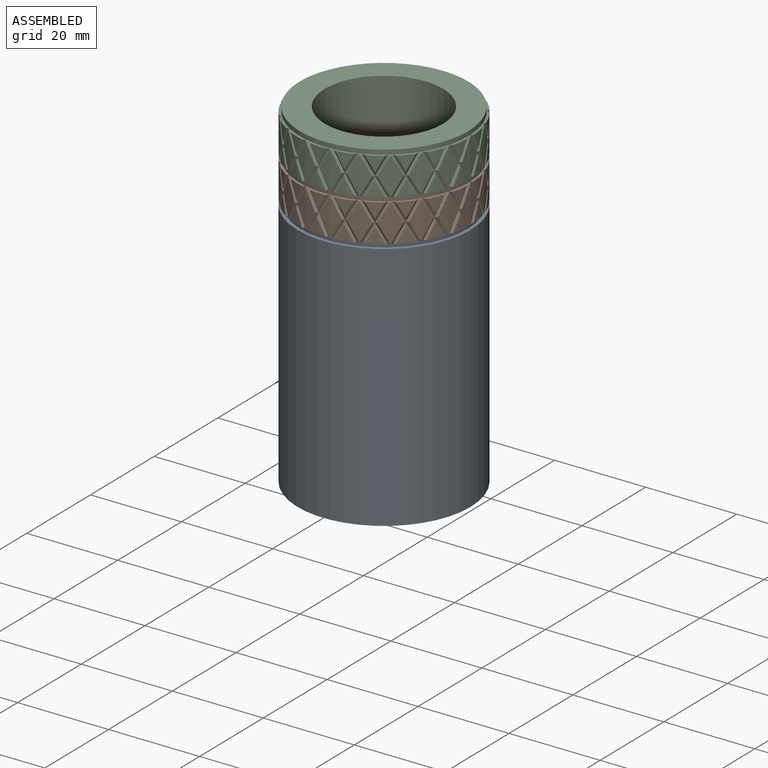
[diagram: assembled view]
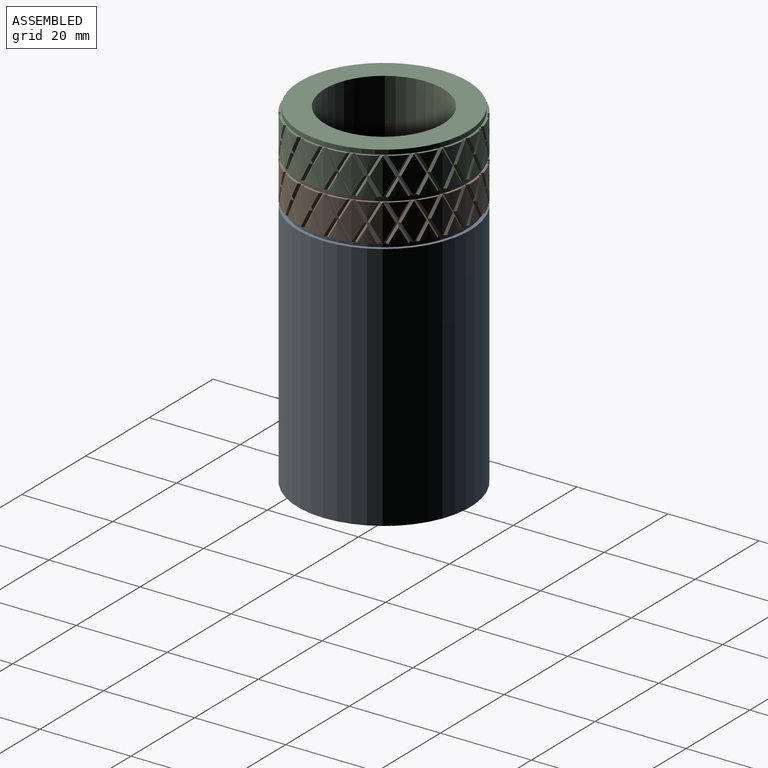
[diagram: assembled view, second angle]
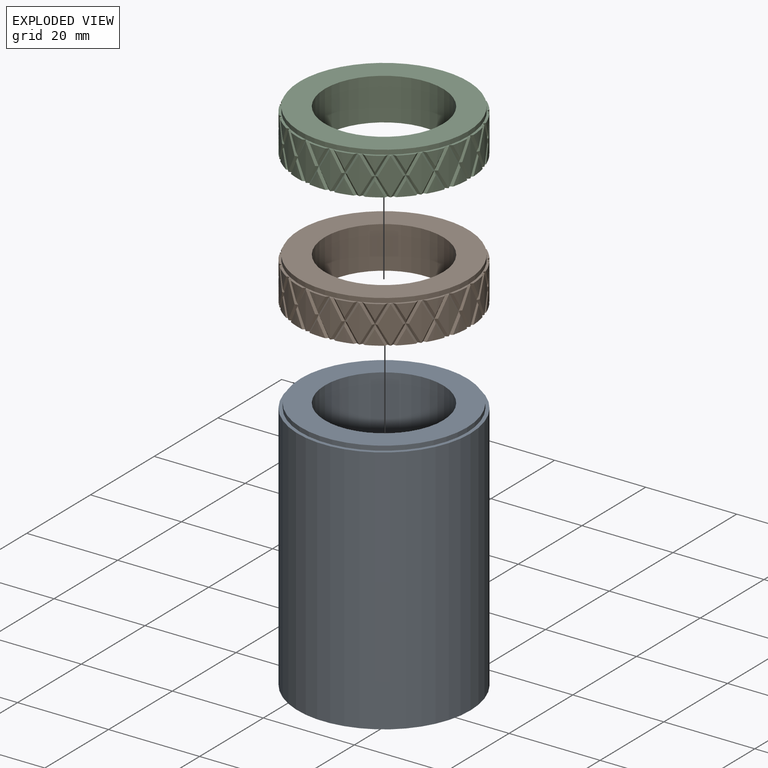
[diagram: exploded view]
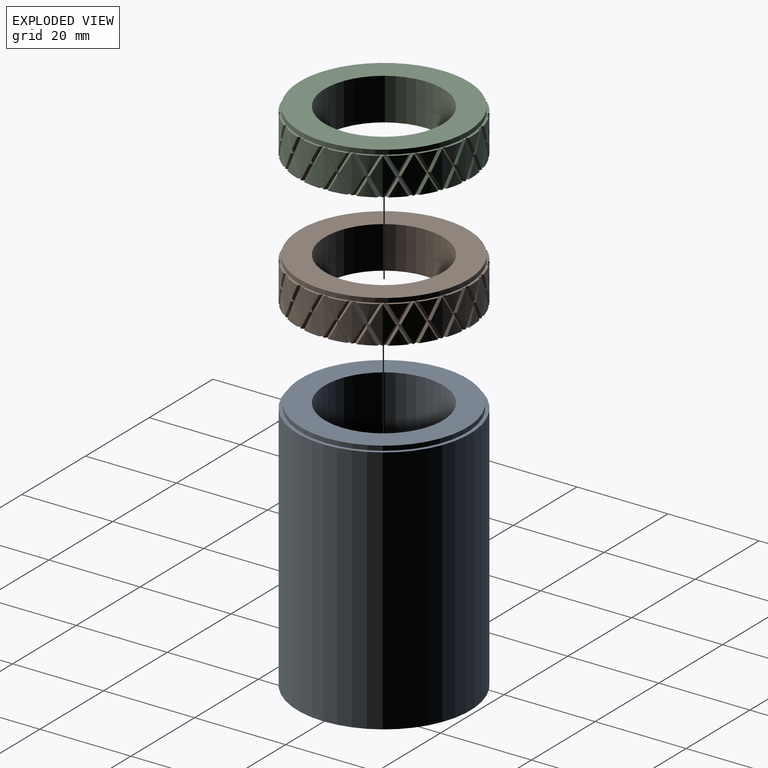
[diagram: exploded view, second angle]
ASSEMBLY  parts=3 mates=2
PART A: 6 faces, bbox 38x38x56 mm
  f0: cylinder r=13mm len=56mm, axis (0,0,-1), area 4574.2mm2, adj f3,f5
  f1: cylinder r=19mm len=55mm, axis (0,0,-1), area 6565.9mm2, adj f2,f3
  f2: plane 38x38mm, normal (0,0,1), area 87.8mm2, adj f1,f4
  f3: plane 38x38mm, normal (0,0,-1), area 603.2mm2, adj f0,f1
  f4: cylinder r=18.25mm len=36.5mm, axis (0,0,-1), area 114.7mm2, adj f2,f5
  f5: plane 36.5x36.5mm, normal (0,0,1), area 515.4mm2, adj f0,f4
PART B: 236 faces, bbox 38.3x38.4x11.5 mm
  f0: bspline ~11.29x5.5mm, area 2.5mm2, adj f1,f6,f228,f235
  f1: bspline ~10.49x5.4mm, area 3mm2, adj f0,f4,f227,f235
  f2: bspline ~11.29x5.87mm, area 2.5mm2, adj f3,f5,f230,f235
  f3: bspline ~10.49x6.15mm, area 3mm2, adj f2,f4,f229,f235
  f4: cylinder r=19mm len=8.25mm, axis (0,0,-1), area 19.5mm2, adj f1,f3,f227,f229,f235
  f5: cylinder r=19mm len=3.64mm, axis (0,0,-1), area 6mm2, adj f2,f230,f235
  f6: cylinder r=19mm len=3.32mm, axis (0,0,-1), area 6mm2, adj f0,f228,f235
  f7: cylinder r=19mm len=3.67mm, axis (0,0,-1), area 6.1mm2, adj f106,f112,f231
  f8: bspline ~11.29x4.64mm, area 2.5mm2, adj f9,f12,f222,f235
  f9: bspline ~10.49x4.46mm, area 3mm2, adj f8,f10,f221,f235
  f10: cylinder r=19mm len=8.25mm, axis (0,0,-1), area 19.5mm2, adj f9,f221,f223,f234,f235
  f11: cylinder r=19mm len=3.34mm, axis (0,0,-1), area 6.1mm2, adj f106,f224,f233
  f12: cylinder r=19mm len=3.25mm, axis (0,0,-1), area 6mm2, adj f8,f222,f235
  f13: bspline ~11.29x5.29mm, area 2.5mm2, adj f14,f17,f216,f235
  f14: bspline ~10.49x5.52mm, area 3mm2, adj f13,f16,f215,f235
  f15: cylinder r=19mm len=3.27mm, axis (0,0,-1), area 6.1mm2, adj f106,f218,f225
  f16: cylinder r=19mm len=8.25mm, axis (0,0,-1), area 19.5mm2, adj f14,f215,f217,f226,f235
  f17: cylinder r=19mm len=3.25mm, axis (0,0,-1), area 6mm2, adj f13,f216,f235
  f18: bspline ~11.29x5.82mm, area 2.5mm2, adj f19,f22,f210,f235
  f19: bspline ~10.49x6.09mm, area 3mm2, adj f18,f21,f209,f235
  f20: cylinder r=19mm len=3.27mm, axis (0,0,-1), area 6.1mm2, adj f106,f212,f219
  f21: cylinder r=19mm len=8.25mm, axis (0,0,-1), area 19.5mm2, adj f19,f209,f211,f220,f235
  f22: cylinder r=19mm len=3.59mm, axis (0,0,-1), area 6mm2, adj f18,f210,f235
  f23: bspline ~11.29x5.93mm, area 2.5mm2, adj f24,f27,f204,f235
  f24: bspline ~10.49x6.12mm, area 3mm2, adj f23,f26,f203,f235
  f25: cylinder r=19mm len=3.62mm, axis (0,0,-1), area 6.1mm2, adj f106,f206,f213
  f26: cylinder r=19mm len=8.25mm, axis (0,0,-1), area 19.5mm2, adj f24,f203,f205,f214,f235
  f27: cylinder r=19mm len=3.67mm, axis (0,0,-1), area 6mm2, adj f23,f204,f235
  f28: bspline ~11.29x5.65mm, area 2.5mm2, adj f29,f32,f198,f235
  f29: bspline ~10.49x5.61mm, area 3mm2, adj f28,f31,f197,f235
  f30: cylinder r=19mm len=3.7mm, axis (0,0,-1), area 6.1mm2, adj f106,f200,f207
  f31: cylinder r=19mm len=8.25mm, axis (0,0,-1), area 19.5mm2, adj f29,f197,f199,f208,f235
  f32: cylinder r=19mm len=3.43mm, axis (0,0,-1), area 6mm2, adj f28,f198,f235
  f33: bspline ~11.29x4.9mm, area 2.5mm2, adj f34,f37,f192,f235
  f34: bspline ~10.49x4.65mm, area 3mm2, adj f33,f36,f191,f235
  f35: cylinder r=19mm len=3.45mm, axis (0,0,-1), area 6.1mm2, adj f106,f194,f201
  f36: cylinder r=19mm len=8.25mm, axis (0,0,-1), area 19.5mm2, adj f34,f191,f193,f202,f235
  f37: cylinder r=19mm len=3.25mm, axis (0,0,-1), area 6mm2, adj f33,f192,f235
  f38: bspline ~11.29x5.09mm, area 2.5mm2, adj f39,f42,f186,f235
  f39: bspline ~10.49x5.3mm, area 3mm2, adj f38,f41,f185,f235
  f40: cylinder r=19mm len=3.27mm, axis (0,0,-1), area 6.1mm2, adj f106,f188,f195
  f41: cylinder r=19mm len=8.25mm, axis (0,0,-1), area 19.5mm2, adj f39,f185,f187,f196,f235
  f42: cylinder r=19mm len=3.25mm, axis (0,0,-1), area 6mm2, adj f38,f186,f235
  f43: bspline ~11.29x5.74mm, area 2.5mm2, adj f44,f47,f180,f235
  f44: bspline ~10.49x6mm, area 3mm2, adj f43,f46,f179,f235
  f45: cylinder r=19mm len=3.27mm, axis (0,0,-1), area 6.1mm2, adj f106,f182,f189
  f46: cylinder r=19mm len=8.25mm, axis (0,0,-1), area 19.5mm2, adj f44,f179,f181,f190,f235
  f47: cylinder r=19mm len=3.52mm, axis (0,0,-1), area 6mm2, adj f43,f180,f235
  f48: bspline ~11.29x5.94mm, area 2.5mm2, adj f49,f52,f174,f235
  f49: bspline ~10.49x6.17mm, area 3mm2, adj f48,f51,f173,f235
  f50: cylinder r=19mm len=3.55mm, axis (0,0,-1), area 6.1mm2, adj f106,f176,f183
  f51: cylinder r=19mm len=8.25mm, axis (0,0,-1), area 19.5mm2, adj f49,f173,f175,f184,f235
  f52: cylinder r=19mm len=3.68mm, axis (0,0,-1), area 6mm2, adj f48,f174,f235
  f53: bspline ~11.29x5.75mm, area 2.5mm2, adj f54,f57,f168,f235
  f54: bspline ~10.49x5.79mm, area 3mm2, adj f53,f56,f167,f235
  f55: cylinder r=19mm len=3.71mm, axis (0,0,-1), area 6.1mm2, adj f106,f170,f177
  f56: cylinder r=19mm len=8.25mm, axis (0,0,-1), area 19.5mm2, adj f54,f167,f169,f178,f235
  f57: cylinder r=19mm len=3.52mm, axis (0,0,-1), area 6mm2, adj f53,f168,f235
  f58: bspline ~11.29x5.13mm, area 2.5mm2, adj f59,f62,f162,f235
  f59: bspline ~10.49x4.9mm, area 3mm2, adj f58,f61,f161,f235
  f60: cylinder r=19mm len=3.55mm, axis (0,0,-1), area 6.1mm2, adj f106,f164,f171
  f61: cylinder r=19mm len=8.25mm, axis (0,0,-1), area 19.5mm2, adj f59,f161,f163,f172,f235
  f62: cylinder r=19mm len=3.25mm, axis (0,0,-1), area 6mm2, adj f58,f162,f235
  f63: bspline ~11.29x4.85mm, area 2.5mm2, adj f64,f67,f156,f235
  f64: bspline ~10.49x5.05mm, area 3mm2, adj f63,f66,f155,f235
  f65: cylinder r=19mm len=3.27mm, axis (0,0,-1), area 6.1mm2, adj f106,f158,f165
  f66: cylinder r=19mm len=8.25mm, axis (0,0,-1), area 19.5mm2, adj f64,f155,f157,f166,f235
  f67: cylinder r=19mm len=3.25mm, axis (0,0,-1), area 6mm2, adj f63,f156,f235
  f68: bspline ~11.29x5.62mm, area 2.5mm2, adj f69,f72,f150,f235
  f69: bspline ~10.49x5.87mm, area 3mm2, adj f68,f71,f149,f235
  f70: cylinder r=19mm len=3.27mm, axis (0,0,-1), area 6.1mm2, adj f106,f152,f159
  f71: cylinder r=19mm len=8.25mm, axis (0,0,-1), area 19.5mm2, adj f69,f149,f151,f160,f235
  f72: cylinder r=19mm len=3.43mm, axis (0,0,-1), area 6mm2, adj f68,f150,f235
  f73: bspline ~11.29x5.92mm, area 2.5mm2, adj f74,f77,f144,f235
  f74: bspline ~10.49x6.18mm, area 3mm2, adj f73,f76,f143,f235
  f75: cylinder r=19mm len=3.45mm, axis (0,0,-1), area 6.1mm2, adj f106,f146,f153
  f76: cylinder r=19mm len=8.25mm, axis (0,0,-1), area 19.5mm2, adj f74,f143,f145,f154,f235
  f77: cylinder r=19mm len=3.67mm, axis (0,0,-1), area 6mm2, adj f73,f144,f235
  f78: bspline ~11.29x5.83mm, area 2.5mm2, adj f79,f82,f138,f235
  f79: bspline ~10.49x5.93mm, area 3mm2, adj f78,f81,f137,f235
  f80: cylinder r=19mm len=3.7mm, axis (0,0,-1), area 6.1mm2, adj f106,f140,f147
  f81: cylinder r=19mm len=8.25mm, axis (0,0,-1), area 19.5mm2, adj f79,f137,f139,f148,f235
  f82: cylinder r=19mm len=3.59mm, axis (0,0,-1), area 6mm2, adj f78,f138,f235
  f83: bspline ~11.29x5.33mm, area 2.5mm2, adj f84,f87,f132,f235
  f84: bspline ~10.49x5.16mm, area 3mm2, adj f83,f86,f131,f235
  f85: cylinder r=19mm len=3.62mm, axis (0,0,-1), area 6.1mm2, adj f106,f134,f141
  f86: cylinder r=19mm len=8.25mm, axis (0,0,-1), area 19.5mm2, adj f84,f131,f133,f142,f235
  f87: cylinder r=19mm len=3.25mm, axis (0,0,-1), area 6mm2, adj f83,f132,f235
  f88: bspline ~11.29x4.59mm, area 2.5mm2, adj f89,f92,f126,f235
  f89: bspline ~10.49x4.77mm, area 3mm2, adj f88,f91,f125,f235
  f90: cylinder r=19mm len=3.27mm, axis (0,0,-1), area 6.1mm2, adj f106,f128,f135
  f91: cylinder r=19mm len=8.25mm, axis (0,0,-1), area 19.5mm2, adj f89,f125,f127,f136,f235
  f92: cylinder r=19mm len=3.25mm, axis (0,0,-1), area 6mm2, adj f88,f126,f235
  f93: bspline ~11.29x5.47mm, area 2.5mm2, adj f94,f97,f120,f235
  f94: bspline ~10.49x5.72mm, area 3mm2, adj f93,f96,f119,f235
  f95: cylinder r=19mm len=3.27mm, axis (0,0,-1), area 6.1mm2, adj f106,f122,f129
  f96: cylinder r=19mm len=8.25mm, axis (0,0,-1), area 19.5mm2, adj f94,f119,f121,f130,f235
  f97: cylinder r=19mm len=3.32mm, axis (0,0,-1), area 6mm2, adj f93,f120,f235
  f98: bspline ~11.29x5.87mm, area 2.5mm2, adj f99,f102,f114,f235
  f99: bspline ~10.49x6.15mm, area 3mm2, adj f98,f101,f113,f235
  f100: cylinder r=19mm len=3.34mm, axis (0,0,-1), area 6.1mm2, adj f106,f116,f123
  f101: cylinder r=19mm len=8.25mm, axis (0,0,-1), area 19.5mm2, adj f99,f113,f115,f124,f235
  f102: cylinder r=19mm len=3.64mm, axis (0,0,-1), area 6mm2, adj f98,f114,f235
  f103: cylinder r=19mm len=3.67mm, axis (0,0,-1), area 6.1mm2, adj f106,f111,f117
  f104: cylinder r=13mm len=26mm, axis (0,0,1), area 755.6mm2, adj f108,f235
  f105: cylinder r=19mm len=8.26mm, axis (0,0,-1), area 19.5mm2, adj f109,f110,f118,f232
  f106: plane 38x38mm, normal (0,0,1), area 49.5mm2, adj f7,f11,f15,f20,f25,f30,f35,f40
  f107: cylinder r=18.5mm len=37mm, axis (0,0,-1), area 116.2mm2, adj f106,f108
  f108: plane 37x37mm, normal (0,0,1), area 544.3mm2, adj f104,f107
  f109: bspline ~11.29x5.87mm, area 2.9mm2, adj f105,f106,f112,f232
  f110: bspline ~11.29x5.87mm, area 2.9mm2, adj f105,f106,f111,f118
  f111: bspline ~10.49x6.15mm, area 2.8mm2, adj f103,f106,f110,f117
  f112: bspline ~10.49x6.15mm, area 2.8mm2, adj f7,f106,f109,f231
  f113: bspline ~11.29x5.88mm, area 2.9mm2, adj f99,f101,f106,f117
  f114: bspline ~11.3x5.88mm, area 2.5mm2, adj f98,f102,f118,f235
  f115: bspline ~11.29x5.47mm, area 2.9mm2, adj f101,f106,f116,f124
  f116: bspline ~10.49x5.72mm, area 2.8mm2, adj f100,f106,f115,f123
  f117: bspline ~4.43x2.61mm, area 2.8mm2, adj f103,f106,f111,f113
  f118: bspline ~4.5x2.75mm, area 3mm2, adj f105,f110,f114,f235
  f119: bspline ~11.29x5.5mm, area 2.9mm2, adj f94,f96,f106,f123
  f120: bspline ~11.3x5.5mm, area 2.5mm2, adj f93,f97,f124,f235
  f121: bspline ~11.29x4.59mm, area 2.9mm2, adj f96,f106,f122,f130
  f122: bspline ~10.49x4.77mm, area 2.8mm2, adj f95,f106,f121,f129
  f123: bspline ~4.43x2.2mm, area 2.8mm2, adj f100,f106,f116,f119
  f124: bspline ~4.48x2.43mm, area 3mm2, adj f101,f115,f120,f235
  f125: bspline ~11.3x4.64mm, area 2.9mm2, adj f89,f91,f106,f129
  f126: bspline ~11.3x4.64mm, area 2.5mm2, adj f88,f92,f130,f235
  f127: bspline ~11.29x5.33mm, area 2.9mm2, adj f91,f106,f128,f136
  f128: bspline ~10.49x5.16mm, area 2.8mm2, adj f90,f106,f127,f135
  f129: bspline ~4.43x2.3mm, area 2.8mm2, adj f95,f106,f122,f125
  f130: bspline ~4.48x2.1mm, area 3mm2, adj f96,f121,f126,f235
  f131: bspline ~11.29x5.29mm, area 2.9mm2, adj f84,f86,f106,f135
  f132: bspline ~11.3x5.29mm, area 2.5mm2, adj f83,f87,f136,f235
  f133: bspline ~11.29x5.83mm, area 2.9mm2, adj f86,f106,f134,f142
  f134: bspline ~10.49x5.93mm, area 2.8mm2, adj f85,f106,f133,f141
  f135: bspline ~4.43x2.67mm, area 2.8mm2, adj f90,f106,f128,f131
  f136: bspline ~4.48x2.56mm, area 3mm2, adj f91,f127,f132,f235
  f137: bspline ~11.3x5.82mm, area 2.9mm2, adj f79,f81,f106,f141
  f138: bspline ~11.3x5.82mm, area 2.5mm2, adj f78,f82,f142,f235
  f139: bspline ~11.29x5.92mm, area 2.9mm2, adj f81,f106,f140,f148
  f140: bspline ~10.49x6.18mm, area 2.8mm2, adj f80,f106,f139,f147
  f141: bspline ~4.43x2.8mm, area 2.8mm2, adj f85,f106,f134,f137
  f142: bspline ~4.48x2.8mm, area 3mm2, adj f86,f133,f138,f235
  f143: bspline ~11.29x5.93mm, area 2.9mm2, adj f74,f76,f106,f147
  f144: bspline ~11.3x5.93mm, area 2.5mm2, adj f73,f77,f148,f235
  f145: bspline ~11.29x5.62mm, area 2.9mm2, adj f76,f106,f146,f154
  f146: bspline ~10.49x5.87mm, area 2.8mm2, adj f75,f106,f145,f153
  f147: bspline ~4.43x2.68mm, area 2.8mm2, adj f80,f106,f140,f143
  f148: bspline ~4.48x2.79mm, area 3mm2, adj f81,f139,f144,f235
  f149: bspline ~11.3x5.65mm, area 2.9mm2, adj f69,f71,f106,f153
  f150: bspline ~11.3x5.65mm, area 2.5mm2, adj f68,f72,f154,f235
  f151: bspline ~11.29x4.85mm, area 2.9mm2, adj f71,f106,f152,f160
  f152: bspline ~10.49x5.05mm, area 2.8mm2, adj f70,f106,f151,f159
  f153: bspline ~4.43x2.32mm, area 2.8mm2, adj f75,f106,f146,f149
  f154: bspline ~4.48x2.53mm, area 3mm2, adj f76,f145,f150,f235
  f155: bspline ~11.3x4.9mm, area 2.9mm2, adj f64,f66,f106,f159
  f156: bspline ~11.3x4.9mm, area 2.5mm2, adj f63,f67,f160,f235
  f157: bspline ~11.29x5.13mm, area 2.9mm2, adj f66,f106,f158,f166
  f158: bspline ~10.49x4.9mm, area 2.8mm2, adj f65,f106,f157,f165
  f159: bspline ~4.43x2.17mm, area 2.8mm2, adj f70,f106,f152,f155
  f160: bspline ~4.48x2.05mm, area 3mm2, adj f71,f151,f156,f235
  f161: bspline ~11.3x5.09mm, area 2.9mm2, adj f59,f61,f106,f165
  f162: bspline ~11.3x5.09mm, area 2.5mm2, adj f58,f62,f166,f235
  f163: bspline ~11.29x5.75mm, area 2.9mm2, adj f61,f106,f164,f172
  f164: bspline ~10.49x5.79mm, area 2.8mm2, adj f60,f106,f163,f171
  f165: bspline ~4.43x2.59mm, area 2.8mm2, adj f65,f106,f158,f161
  f166: bspline ~4.48x2.47mm, area 3mm2, adj f66,f157,f162,f235
  f167: bspline ~11.29x5.74mm, area 2.9mm2, adj f54,f56,f106,f171
  f168: bspline ~11.3x5.74mm, area 2.5mm2, adj f53,f57,f172,f235
  f169: bspline ~11.29x5.94mm, area 2.9mm2, adj f56,f106,f170,f178
  f170: bspline ~10.49x6.17mm, area 2.8mm2, adj f55,f106,f169,f177
  f171: bspline ~4.43x2.79mm, area 2.8mm2, adj f60,f106,f164,f167
  f172: bspline ~4.48x2.76mm, area 3mm2, adj f61,f163,f168,f235
  f173: bspline ~11.29x5.94mm, area 2.9mm2, adj f49,f51,f106,f177
  f174: bspline ~11.3x5.94mm, area 2.5mm2, adj f48,f52,f178,f235
  f175: bspline ~11.29x5.74mm, area 2.9mm2, adj f51,f106,f176,f184
  f176: bspline ~10.49x6mm, area 2.8mm2, adj f50,f106,f175,f183
  f177: bspline ~4.43x2.73mm, area 2.8mm2, adj f55,f106,f170,f173
  f178: bspline ~4.48x2.82mm, area 3mm2, adj f56,f169,f174,f235
  f179: bspline ~11.29x5.76mm, area 2.9mm2, adj f44,f46,f106,f183
  f180: bspline ~11.3x5.76mm, area 2.5mm2, adj f43,f47,f184,f235
  f181: bspline ~11.29x5.09mm, area 2.9mm2, adj f46,f106,f182,f190
  f182: bspline ~10.49x5.3mm, area 2.8mm2, adj f45,f106,f181,f189
  f183: bspline ~4.43x2.43mm, area 2.8mm2, adj f50,f106,f176,f179
  f184: bspline ~4.48x2.62mm, area 3mm2, adj f51,f175,f180,f235
  f185: bspline ~11.3x5.13mm, area 2.9mm2, adj f39,f41,f106,f189
  f186: bspline ~11.3x5.13mm, area 2.5mm2, adj f38,f42,f190,f235
  f187: bspline ~11.29x4.9mm, area 2.9mm2, adj f41,f106,f188,f196
  f188: bspline ~10.49x4.65mm, area 2.8mm2, adj f40,f106,f187,f195
  f189: bspline ~4.43x2.03mm, area 2.8mm2, adj f45,f106,f182,f185
  f190: bspline ~4.48x2.19mm, area 3mm2, adj f46,f181,f186,f235
  f191: bspline ~11.29x4.85mm, area 2.9mm2, adj f34,f36,f106,f195
  f192: bspline ~11.3x4.85mm, area 2.5mm2, adj f33,f37,f196,f235
  f193: bspline ~11.29x5.65mm, area 2.9mm2, adj f36,f106,f194,f202
  f194: bspline ~10.49x5.61mm, area 2.8mm2, adj f35,f106,f193,f201
  f195: bspline ~4.43x2.51mm, area 2.8mm2, adj f40,f106,f188,f191
  f196: bspline ~4.48x2.36mm, area 3mm2, adj f41,f187,f192,f235
  f197: bspline ~11.29x5.62mm, area 2.9mm2, adj f29,f31,f106,f201
  f198: bspline ~11.3x5.62mm, area 2.5mm2, adj f28,f32,f202,f235
  f199: bspline ~11.29x5.93mm, area 2.9mm2, adj f31,f106,f200,f208
  f200: bspline ~10.49x6.12mm, area 2.8mm2, adj f30,f106,f199,f207
  f201: bspline ~4.43x2.76mm, area 2.8mm2, adj f35,f106,f194,f197
  f202: bspline ~4.48x2.71mm, area 3mm2, adj f36,f193,f198,f235
  f203: bspline ~11.3x5.92mm, area 2.9mm2, adj f24,f26,f106,f207
  f204: bspline ~11.3x5.92mm, area 2.5mm2, adj f23,f27,f208,f235
  f205: bspline ~11.29x5.82mm, area 2.9mm2, adj f26,f106,f206,f214
  f206: bspline ~10.49x6.09mm, area 2.8mm2, adj f25,f106,f205,f213
  f207: bspline ~4.43x2.77mm, area 2.8mm2, adj f30,f106,f200,f203
  f208: bspline ~4.48x2.83mm, area 3mm2, adj f31,f199,f204,f235
  f209: bspline ~11.3x5.83mm, area 2.9mm2, adj f19,f21,f106,f213
  f210: bspline ~11.3x5.83mm, area 2.5mm2, adj f18,f22,f214,f235
  f211: bspline ~11.29x5.29mm, area 2.9mm2, adj f21,f106,f212,f220
  f212: bspline ~10.49x5.52mm, area 2.8mm2, adj f20,f106,f211,f219
  f213: bspline ~4.43x2.53mm, area 2.8mm2, adj f25,f106,f206,f209
  f214: bspline ~4.48x2.69mm, area 3mm2, adj f26,f205,f210,f235
  f215: bspline ~11.29x5.33mm, area 2.9mm2, adj f14,f16,f106,f219
  f216: bspline ~11.3x5.33mm, area 2.5mm2, adj f13,f17,f220,f235
  f217: bspline ~11.29x4.64mm, area 2.9mm2, adj f16,f106,f218,f226
  f218: bspline ~10.49x4.46mm, area 2.8mm2, adj f15,f106,f217,f225
  f219: bspline ~4.43x2.07mm, area 2.8mm2, adj f20,f106,f212,f215
  f220: bspline ~4.48x2.31mm, area 3mm2, adj f21,f211,f216,f235
  f221: bspline ~11.29x4.59mm, area 2.9mm2, adj f9,f10,f106,f225
  f222: bspline ~11.3x4.59mm, area 2.5mm2, adj f8,f12,f226,f235
  f223: bspline ~11.29x5.5mm, area 2.9mm2, adj f10,f106,f224,f234
  f224: bspline ~10.49x5.4mm, area 2.8mm2, adj f11,f106,f223,f233
  f225: bspline ~4.43x2.41mm, area 2.8mm2, adj f15,f106,f218,f221
  f226: bspline ~4.48x2.23mm, area 3mm2, adj f16,f217,f222,f235
  f227: bspline ~11.29x5.47mm, area 2.9mm2, adj f1,f4,f106,f233
  f228: bspline ~11.3x5.47mm, area 2.5mm2, adj f0,f6,f234,f235
  f229: bspline ~11.3x5.88mm, area 2.9mm2, adj f3,f4,f106,f231
  f230: bspline ~11.3x5.88mm, area 2.5mm2, adj f2,f5,f232,f235
  f231: bspline ~4.43x2.61mm, area 2.8mm2, adj f7,f106,f112,f229
  f232: bspline ~4.5x2.75mm, area 3mm2, adj f105,f109,f230,f235
  f233: bspline ~4.43x2.72mm, area 2.8mm2, adj f11,f106,f224,f227
  f234: bspline ~4.48x2.64mm, area 3mm2, adj f10,f223,f228,f235
  f235: plane 38x38mm, normal (0,0,-1), area 593mm2, adj f0,f1,f2,f3,f4,f5,f6,f8
PART C: same geometry as B
PLACE A t=(-8.6,21.6,-28.97)mm
PLACE B t=(-8.6,21.6,-84.72)mm
PLACE C t=(-8.6,21.6,-75.47)mm
MATE fastened B.f107 <-> C.f104  axis (0,0,1) through (-8.6,21.6,36.28)mm
MATE fastened B.f107 <-> A.f4  axis (0,0,-1) through (-8.6,21.6,27.03)mm
